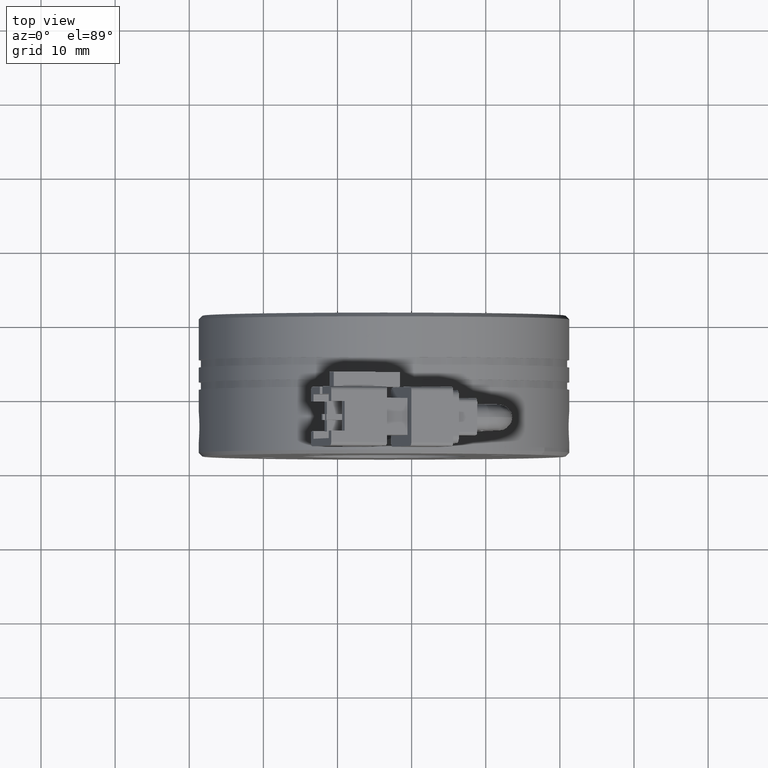
[diagram: clean part render]
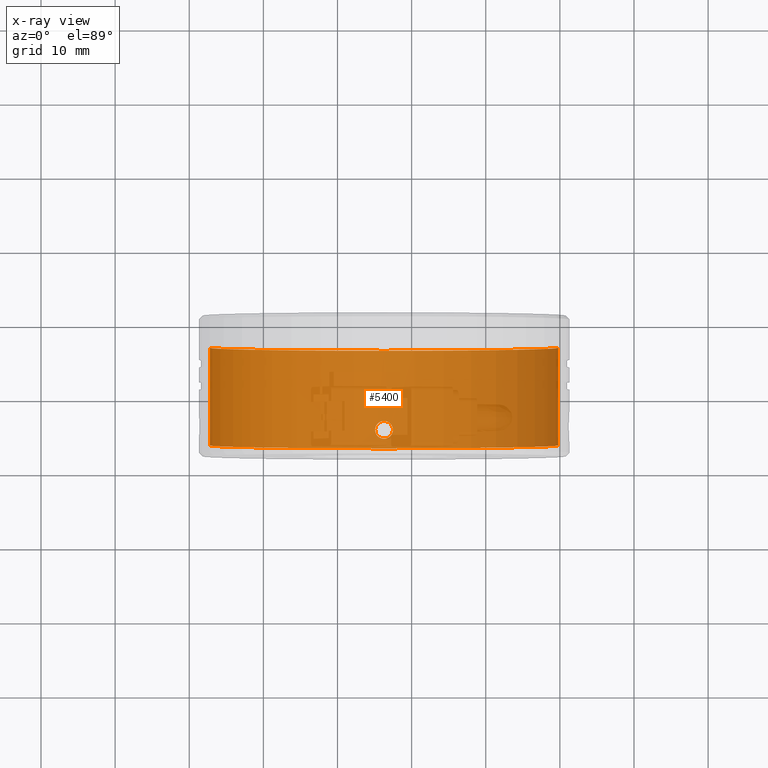
[diagram: x-ray — body ghosted, one internal face saturated and labeled with its STEP entity id]
A machine part, top view, then the same camera in x-ray: the body is ghosted and one INTERNAL B-rep face — a face not visible from any outside direction — is saturated and labeled: STEP entity #5400.
In plain terms, the highlighted cylindrical surface (partial cylindrical patch) has radius 23.5 mm, axis along (-0, 1, -0).
Its self-contained STEP definition (entity closure, byte-faithful):
#54 = CARTESIAN_POINT ( 'NONE',  ( -70.22635228848822900, 4.927531206657398900, -0.1584924912453062300 ) ) ;
#237 = CARTESIAN_POINT ( 'NONE',  ( -70.22635228848822900, 4.927531206657431700, 2.877919977996460600E-015 ) ) ;
#351 = ORIENTED_EDGE ( 'NONE', *, *, #16854, .F. ) ;
#1574 = CYLINDRICAL_SURFACE ( 'NONE', #35791, 23.50000000000000700 ) ;
#2551 = CARTESIAN_POINT ( 'NONE',  ( -117.2263522884882400, 7.327531206657441000, -0.1584924912449848500 ) ) ;
#2922 = CARTESIAN_POINT ( 'NONE',  ( -70.22635228848822900, 4.927531206657431700, 2.877919977996460600E-015 ) ) ;
#3144 = VERTEX_POINT ( 'NONE', #12039 ) ;
#3551 = CARTESIAN_POINT ( 'NONE',  ( -117.2190250022617000, 5.079063876437064800, -0.6045118918368167500 ) ) ;
#3667 = DIRECTION ( 'NONE',  ( -1.000000000000000000, -1.476360405086643800E-016, 0.0000000000000000000 ) ) ;
#3778 = EDGE_CURVE ( 'NONE', #32071, #49871, #41847, .T. ) ;
#3866 = CARTESIAN_POINT ( 'NONE',  ( -70.23367957471472800, 7.175998536877893100, -0.6045118918369504200 ) ) ;
#5110 = CARTESIAN_POINT ( 'NONE',  ( -117.2263522884882400, 3.627531206657425700, 2.906277393448951200E-015 ) ) ;
#5400 = ADVANCED_FACE ( 'NONE', ( #6446, #15622 ), #1574, .F. ) ;
#6304 = CARTESIAN_POINT ( 'NONE',  ( -117.1956939920810300, 6.127531206657418600, -1.199999999999910900 ) ) ;
#6382 = VERTEX_POINT ( 'NONE', #48952 ) ;
#6446 = FACE_BOUND ( 'NONE', #33387, .T. ) ;
#7254 = EDGE_CURVE ( 'NONE', #6382, #20336, #21898, .T. ) ;
#7495 = CARTESIAN_POINT ( 'NONE',  ( -117.2070418420326500, 5.389292777899932200, -0.9588959344436245300 ) ) ;
#7540 = ORIENTED_EDGE ( 'NONE', *, *, #34299, .F. ) ;
#7795 = CARTESIAN_POINT ( 'NONE',  ( -70.24566273494380700, 6.865769635415026600, -0.9588959344438681100 ) ) ;
#8013 = EDGE_CURVE ( 'NONE', #3144, #46477, #38472, .T. ) ;
#9615 = EDGE_LOOP ( 'NONE', ( #25960, #29288, #24993, #27065, #18513, #44893, #16829, #14979, #7540, #351 ) ) ;
#9689 = VERTEX_POINT ( 'NONE', #13739 ) ;
#10111 = EDGE_CURVE ( 'NONE', #15062, #46808, #14790, .T. ) ;
#10303 = DIRECTION ( 'NONE',  ( -1.224646799147351700E-016, 1.000000000000000000, -0.0000000000000000000 ) ) ;
#11436 = CARTESIAN_POINT ( 'NONE',  ( -117.1973777877011900, 5.811552157777597900, -1.168143672619332800 ) ) ;
#11482 = CARTESIAN_POINT ( 'NONE',  ( -70.22635228848822900, 24.01734612509121900, 2.877919977996280300E-015 ) ) ;
#11738 = CARTESIAN_POINT ( 'NONE',  ( -70.25532678927531500, 6.443510255537303200, -1.168143672619650100 ) ) ;
#11931 = DIRECTION ( 'NONE',  ( -1.000000000000000000, -1.476360405086643800E-016, 0.0000000000000000000 ) ) ;
#11933 = EDGE_CURVE ( 'NONE', #9689, #35392, #38612, .T. ) ;
#12039 = CARTESIAN_POINT ( 'NONE',  ( -70.22635228848822900, 7.327531206657418700, 2.877919977996100100E-015 ) ) ;
#12055 = ORIENTED_EDGE ( 'NONE', *, *, #13246, .F. ) ;
#13246 = EDGE_CURVE ( 'NONE', #49871, #32071, #36763, .T. ) ;
#13739 = CARTESIAN_POINT ( 'NONE',  ( -70.22635228848822900, 3.627531206657431900, -2.258754526011502900E-018 ) ) ;
#13786 = DIRECTION ( 'NONE',  ( -1.224646799147351700E-016, 1.000000000000000000, -0.0000000000000000000 ) ) ;
#13856 = CARTESIAN_POINT ( 'NONE',  ( -93.72635228848822900, 24.01734612509121500, 0.0000000000000000000 ) ) ;
#14009 = DIRECTION ( 'NONE',  ( -1.224646799147351700E-016, 1.000000000000000000, -0.0000000000000000000 ) ) ;
#14266 = B_SPLINE_CURVE_WITH_KNOTS ( 'NONE', 3,
 ( #23161, #46697, #27117, #3551, #31087, #7495, #35035, #11436, #39039, #15363 ),
 .UNSPECIFIED., .F., .F.,
 ( 4, 2, 2, 2, 4 ),
 ( 2.102443818765147500E-018, 0.0004687238019175268900, 0.0009374476038350516200, 0.001406171405752577100, 0.001874895207670102200 ),
 .UNSPECIFIED. ) ;
#14790 = LINE ( 'NONE', #42142, #25329 ) ;
#14979 = ORIENTED_EDGE ( 'NONE', *, *, #41221, .F. ) ;
#15062 = VERTEX_POINT ( 'NONE', #38839 ) ;
#15071 = DIRECTION ( 'NONE',  ( -1.224646799147351700E-016, 1.000000000000000000, -0.0000000000000000000 ) ) ;
#15267 = CARTESIAN_POINT ( 'NONE',  ( -92.52635228848824100, 6.127531206657422100, -23.46934170359279600 ) ) ;
#15363 = CARTESIAN_POINT ( 'NONE',  ( -117.1956939920810300, 6.127531206657418600, -1.199999999999910900 ) ) ;
#15622 = FACE_OUTER_BOUND ( 'NONE', #9615, .T. ) ;
#15672 = CARTESIAN_POINT ( 'NONE',  ( -70.25701058489544000, 6.127531206657424800, -1.200000000000239500 ) ) ;
#16829 = ORIENTED_EDGE ( 'NONE', *, *, #10111, .F. ) ;
#16854 = EDGE_CURVE ( 'NONE', #35392, #45990, #36390, .T. ) ;
#17013 = CARTESIAN_POINT ( 'NONE',  ( -70.24568441233255100, 5.389970849347161400, -0.9594175871689084600 ) ) ;
#18162 = CARTESIAN_POINT ( 'NONE',  ( -117.2030289015235800, 6.732042999483815600, -1.048467379871308200 ) ) ;
#18434 = CARTESIAN_POINT ( 'NONE',  ( -70.25701058489544000, 5.969038387537105800, -1.200000000000239800 ) ) ;
#18513 = ORIENTED_EDGE ( 'NONE', *, *, #8013, .T. ) ;
#18635 = VECTOR ( 'NONE', #14009, 1000.000000000000000 ) ;
#20298 = CARTESIAN_POINT ( 'NONE',  ( -94.92635228848823200, 6.127531206657421200, -23.46934170359279600 ) ) ;
#20336 = VERTEX_POINT ( 'NONE', #2922 ) ;
#21328 = CARTESIAN_POINT ( 'NONE',  ( -70.25535928210436500, 5.813520983341323500, -1.168809622639256400 ) ) ;
#21739 = CARTESIAN_POINT ( 'NONE',  ( -70.25701058489544000, 6.127531206657424800, -1.200000000000239500 ) ) ;
#21898 = B_SPLINE_CURVE_WITH_KNOTS ( 'NONE', 3,
 ( #21739, #18434, #21328, #36716, #17013, #24806, #25308, #25482, #54, #237 ),
 .UNSPECIFIED., .F., .F.,
 ( 4, 2, 2, 2, 4 ),
 ( 0.001874895207670434100, 0.002343619967947029700, 0.002812344728223625100, 0.003281069488500220500, 0.003749794248776815900 ),
 .UNSPECIFIED. ) ;
#22129 = CARTESIAN_POINT ( 'NONE',  ( -117.2150144435694700, 7.086427033059473900, -0.7382385666928919000 ) ) ;
#22466 = CARTESIAN_POINT ( 'NONE',  ( -92.52635228848824100, 6.127531206657422100, -23.46934170359279600 ) ) ;
#22635 = CARTESIAN_POINT ( 'NONE',  ( -92.52635228848814100, 5.968963200341976400, -23.46934170359280000 ) ) ;
#22964 = CARTESIAN_POINT ( 'NONE',  ( -92.67825506393188600, 5.522336195100542100, -23.47669348980444000 ) ) ;
#23131 = CARTESIAN_POINT ( 'NONE',  ( -92.55764167313351700, 5.813072478533595000, -23.47099828520095600 ) ) ;
#23161 = CARTESIAN_POINT ( 'NONE',  ( -117.2263522884882300, 4.927531206657425500, 1.487927585237400600E-029 ) ) ;
#23289 = CARTESIAN_POINT ( 'NONE',  ( -92.76635646491273200, 5.390310025290054900, -23.48065131060275200 ) ) ;
#23463 = CARTESIAN_POINT ( 'NONE',  ( -92.99051334207588600, 5.166475486898195700, -23.48874451724348600 ) ) ;
#23633 = CARTESIAN_POINT ( 'NONE',  ( -93.12275977818036700, 5.078535861982799400, -23.49269661661980600 ) ) ;
#23685 = CARTESIAN_POINT ( 'NONE',  ( -93.41334681926930700, 4.958453481316702500, -23.49836474768571300 ) ) ;
#24032 = CARTESIAN_POINT ( 'NONE',  ( -93.57064420649742000, 4.927424354009106700, -23.50000545630416900 ) ) ;
#24220 = CARTESIAN_POINT ( 'NONE',  ( -93.88370300668091800, 4.927638621442001800, -23.49999451499100900 ) ) ;
#24501 = B_SPLINE_CURVE_WITH_KNOTS ( 'NONE', 3,
 ( #6304, #25927, #41804, #18162, #45677, #22129, #49602, #26101, #2551, #30041 ),
 .UNSPECIFIED., .F., .F.,
 ( 4, 2, 2, 2, 4 ),
 ( 0.001874895207670102200, 0.002343619967946616000, 0.002812344728223129800, 0.003281069488499643700, 0.003749794248776157500 ),
 .UNSPECIFIED. ) ;
#24806 = CARTESIAN_POINT ( 'NONE',  ( -70.23769013340701400, 5.168635380255253200, -0.7382385666930709700 ) ) ;
#24846 = AXIS2_PLACEMENT_3D ( 'NONE', #50729, #27240, #3667 ) ;
#24993 = ORIENTED_EDGE ( 'NONE', *, *, #7254, .F. ) ;
#25308 = CARTESIAN_POINT ( 'NONE',  ( -70.23368564043339300, 5.079214519232675900, -0.6045118168779820600 ) ) ;
#25329 = VECTOR ( 'NONE', #10303, 1000.000000000000000 ) ;
#25424 = CARTESIAN_POINT ( 'NONE',  ( -94.04161272719740300, 4.959183482535530100, -23.49832889752806900 ) ) ;
#25482 = CARTESIAN_POINT ( 'NONE',  ( -70.22803366770975200, 4.959387532219611900, -0.3159790653652507800 ) ) ;
#25758 = CARTESIAN_POINT ( 'NONE',  ( -70.22635228848822900, 24.01734612509121900, 2.877919977996280300E-015 ) ) ;
#25911 = EDGE_CURVE ( 'NONE', #46808, #46477, #44389, .T. ) ;
#25925 = CARTESIAN_POINT ( 'NONE',  ( -94.33034890149778600, 5.078906564495665200, -23.49268052419925100 ) ) ;
#25927 = CARTESIAN_POINT ( 'NONE',  ( -117.1956939920810200, 6.286024025777710900, -1.199999999999910500 ) ) ;
#25960 = ORIENTED_EDGE ( 'NONE', *, *, #11933, .F. ) ;
#26097 = CARTESIAN_POINT ( 'NONE',  ( -94.46418425551843300, 5.168310903423362700, -23.48867536120525700 ) ) ;
#26101 = CARTESIAN_POINT ( 'NONE',  ( -117.2246709092666900, 7.295674881095159500, -0.3159790653651863800 ) ) ;
#26266 = CARTESIAN_POINT ( 'NONE',  ( -94.68554589669294300, 5.389664535986304900, -23.48067745738272900 ) ) ;
#26606 = CARTESIAN_POINT ( 'NONE',  ( -94.77467945293975000, 5.522757737338537300, -23.47668301450492500 ) ) ;
#26768 = CARTESIAN_POINT ( 'NONE',  ( -94.89513057265425300, 5.813368644627938200, -23.47099470686603300 ) ) ;
#26943 = CARTESIAN_POINT ( 'NONE',  ( -70.22635228848822900, 16.78530919654422600, 0.0000000000000000000 ) ) ;
#27065 = ORIENTED_EDGE ( 'NONE', *, *, #27742, .F. ) ;
#27087 = CARTESIAN_POINT ( 'NONE',  ( -94.92635228848820400, 5.968963090555246400, -23.46934170359279300 ) ) ;
#27117 = CARTESIAN_POINT ( 'NONE',  ( -117.2247033675538600, 4.958721580975749900, -0.3140102368163331100 ) ) ;
#27240 = DIRECTION ( 'NONE',  ( 1.224646799147351700E-016, -1.000000000000000000, 0.0000000000000000000 ) ) ;
#27256 = CARTESIAN_POINT ( 'NONE',  ( -94.92635228848823200, 6.127531206657421200, -23.46934170359279600 ) ) ;
#27409 = CARTESIAN_POINT ( 'NONE',  ( -70.22800120942261500, 7.296340832339169900, -0.3140102368163921200 ) ) ;
#27742 = EDGE_CURVE ( 'NONE', #3144, #6382, #28114, .T. ) ;
#28114 = B_SPLINE_CURVE_WITH_KNOTS ( 'NONE', 3,
 ( #47005, #50900, #27409, #3866, #31393, #7795, #35348, #11738, #39322, #15672 ),
 .UNSPECIFIED., .F., .F.,
 ( 4, 2, 2, 2, 4 ),
 ( 2.806702024536074400E-021, 0.0004687238019176085300, 0.0009374476038352170700, 0.001406171405752825500, 0.001874895207670434100 ),
 .UNSPECIFIED. ) ;
#28441 = ORIENTED_EDGE ( 'NONE', *, *, #3778, .F. ) ;
#29288 = ORIENTED_EDGE ( 'NONE', *, *, #46323, .T. ) ;
#29724 = CARTESIAN_POINT ( 'NONE',  ( -94.92635228848823200, 6.127531206657421200, -23.46934170359279600 ) ) ;
#30041 = CARTESIAN_POINT ( 'NONE',  ( -117.2263522884882300, 7.327531206657412500, -1.972152263052529500E-028 ) ) ;
#30194 = AXIS2_PLACEMENT_3D ( 'NONE', #32162, #44035, #40929 ) ;
#31087 = CARTESIAN_POINT ( 'NONE',  ( -117.2150361141603300, 5.168113711426256500, -0.7375604793040598800 ) ) ;
#31393 = CARTESIAN_POINT ( 'NONE',  ( -70.23766846281611700, 7.086948701888709400, -0.7375604793042350700 ) ) ;
#31955 = DIRECTION ( 'NONE',  ( -1.224646799147351700E-016, 1.000000000000000000, -0.0000000000000000000 ) ) ;
#32060 = CARTESIAN_POINT ( 'NONE',  ( -117.2263522884882400, 24.01734612509121200, 0.0000000000000000000 ) ) ;
#32071 = VERTEX_POINT ( 'NONE', #15267 ) ;
#32162 = CARTESIAN_POINT ( 'NONE',  ( -93.72635228848822900, 3.627531206657428800, 0.0000000000000000000 ) ) ;
#33387 = EDGE_LOOP ( 'NONE', ( #12055, #28441 ) ) ;
#34086 = LINE ( 'NONE', #25758, #18635 ) ;
#34299 = EDGE_CURVE ( 'NONE', #45990, #47823, #14266, .T. ) ;
#35035 = CARTESIAN_POINT ( 'NONE',  ( -117.2030349682191600, 5.523019486833152100, -1.048316736395401100 ) ) ;
#35348 = CARTESIAN_POINT ( 'NONE',  ( -70.24966960875733000, 6.732042926481792500, -1.048316736395676000 ) ) ;
#35392 = VERTEX_POINT ( 'NONE', #5110 ) ;
#35791 = AXIS2_PLACEMENT_3D ( 'NONE', #13856, #13786, #11931 ) ;
#36390 = LINE ( 'NONE', #32060, #46767 ) ;
#36716 = CARTESIAN_POINT ( 'NONE',  ( -70.24967567545289200, 5.523019413830928300, -1.048467379871584400 ) ) ;
#36763 = B_SPLINE_CURVE_WITH_KNOTS ( 'NONE', 3,
 ( #27256, #27087, #26768, #26606, #26266, #26097, #25925, #25424, #24220, #24032, #23685, #23633, #23463, #23289, #22964, #23131, #22635, #22466 ),
 .UNSPECIFIED., .F., .F.,
 ( 4, 2, 2, 2, 2, 2, 2, 2, 4 ),
 ( 0.0000000000000000000, 0.0004689464760253244400, 0.0009378929520506488900, 0.001406839428075973300, 0.001875785904101297800, 0.002344732380126622400, 0.002813678856151946700, 0.003282625332177270900, 0.003751571808202595500 ),
 .UNSPECIFIED. ) ;
#37142 = CARTESIAN_POINT ( 'NONE',  ( -117.2263522884882400, 16.78530919654421900, 2.877919977996280700E-015 ) ) ;
#37237 = VECTOR ( 'NONE', #15071, 1000.000000000000000 ) ;
#38472 = LINE ( 'NONE', #11482, #37237 ) ;
#38612 = CIRCLE ( 'NONE', #30194, 23.50000000000000700 ) ;
#38839 = CARTESIAN_POINT ( 'NONE',  ( -117.2263522884882300, 7.327531206657412500, -1.972152263052529500E-028 ) ) ;
#39039 = CARTESIAN_POINT ( 'NONE',  ( -117.1956939920810300, 5.969038711593016800, -1.199999999999911100 ) ) ;
#39322 = CARTESIAN_POINT ( 'NONE',  ( -70.25701058489545400, 6.286023701721856800, -1.200000000000239500 ) ) ;
#40101 = CARTESIAN_POINT ( 'NONE',  ( -117.1956939920810300, 6.127531206657418600, -1.199999999999910900 ) ) ;
#40929 = DIRECTION ( 'NONE',  ( -1.000000000000000000, -1.291815354450813400E-016, 0.0000000000000000000 ) ) ;
#41221 = EDGE_CURVE ( 'NONE', #47823, #15062, #24501, .T. ) ;
#41804 = CARTESIAN_POINT ( 'NONE',  ( -117.1973452948721500, 6.441541429973464800, -1.168809622638938800 ) ) ;
#41847 = B_SPLINE_CURVE_WITH_KNOTS ( 'NONE', 3,
 ( #43482, #44270, #44333, #44508, #44768, #44926, #45094, #45154, #45313, #45411, #45469, #45568, #45633, #45747, #45856, #45961, #46025, #20298 ),
 .UNSPECIFIED., .F., .F.,
 ( 4, 2, 2, 2, 2, 2, 2, 2, 4 ),
 ( 0.003751571808202595500, 0.004220518608907716300, 0.004689465409612837000, 0.005158412210317958600, 0.005627359011023078500, 0.006096305811728200100, 0.006565252612433320800, 0.007034199413138441500, 0.007503146213843562200 ),
 .UNSPECIFIED. ) ;
#42142 = CARTESIAN_POINT ( 'NONE',  ( -117.2263522884882400, 24.01734612509121200, 0.0000000000000000000 ) ) ;
#43482 = CARTESIAN_POINT ( 'NONE',  ( -92.52635228848824100, 6.127531206657422100, -23.46934170359279600 ) ) ;
#44035 = DIRECTION ( 'NONE',  ( -1.224646799147351700E-016, 1.000000000000000000, -0.0000000000000000000 ) ) ;
#44270 = CARTESIAN_POINT ( 'NONE',  ( -92.52635228848834000, 6.286099322760179600, -23.46934170359280000 ) ) ;
#44333 = CARTESIAN_POINT ( 'NONE',  ( -92.55757400432222000, 6.441693768686905100, -23.47099470686603300 ) ) ;
#44389 = CIRCLE ( 'NONE', #24846, 23.50000000000000700 ) ;
#44508 = CARTESIAN_POINT ( 'NONE',  ( -92.67802512403667900, 6.732304675976314100, -23.47668301450492500 ) ) ;
#44768 = CARTESIAN_POINT ( 'NONE',  ( -92.76715868028351500, 6.865397877328550900, -23.48067745738272900 ) ) ;
#44893 = ORIENTED_EDGE ( 'NONE', *, *, #25911, .F. ) ;
#44926 = CARTESIAN_POINT ( 'NONE',  ( -92.98852032145808300, 7.086751509891494800, -23.48867536120525700 ) ) ;
#45094 = CARTESIAN_POINT ( 'NONE',  ( -93.12235567547868700, 7.176155848819189700, -23.49268052419925100 ) ) ;
#45154 = CARTESIAN_POINT ( 'NONE',  ( -93.41109184977908300, 7.295878930779317700, -23.49832889752806900 ) ) ;
#45313 = CARTESIAN_POINT ( 'NONE',  ( -93.56900157029559800, 7.327423791872844200, -23.49999451499100900 ) ) ;
#45411 = CARTESIAN_POINT ( 'NONE',  ( -93.88206037047903900, 7.327638059305735800, -23.50000545630417600 ) ) ;
#45469 = CARTESIAN_POINT ( 'NONE',  ( -94.03935775770718000, 7.296608931998145300, -23.49836474768571300 ) ) ;
#45568 = CARTESIAN_POINT ( 'NONE',  ( -94.32994479879609200, 7.176526551332052000, -23.49269661661981300 ) ) ;
#45633 = CARTESIAN_POINT ( 'NONE',  ( -94.46219123490060100, 7.088586926416633500, -23.48874451724348200 ) ) ;
#45677 = CARTESIAN_POINT ( 'NONE',  ( -117.2070201646439400, 6.865091563967570900, -0.9594175871686626600 ) ) ;
#45747 = CARTESIAN_POINT ( 'NONE',  ( -94.68634811206376900, 6.864752388024787600, -23.48065131060275600 ) ) ;
#45856 = CARTESIAN_POINT ( 'NONE',  ( -94.77444951304458700, 6.732726218214312800, -23.47669348980444000 ) ) ;
#45961 = CARTESIAN_POINT ( 'NONE',  ( -94.89506290384297000, 6.441989934781243000, -23.47099828520095200 ) ) ;
#45990 = VERTEX_POINT ( 'NONE', #50965 ) ;
#46025 = CARTESIAN_POINT ( 'NONE',  ( -94.92635228848824600, 6.286099432545824200, -23.46934170359280000 ) ) ;
#46323 = EDGE_CURVE ( 'NONE', #9689, #20336, #34086, .T. ) ;
#46477 = VERTEX_POINT ( 'NONE', #26943 ) ;
#46697 = CARTESIAN_POINT ( 'NONE',  ( -117.2263522884882600, 4.927531206657435300, -0.1584928137568281900 ) ) ;
#46767 = VECTOR ( 'NONE', #31955, 1000.000000000000000 ) ;
#46808 = VERTEX_POINT ( 'NONE', #37142 ) ;
#47005 = CARTESIAN_POINT ( 'NONE',  ( -70.22635228848822900, 7.327531206657418700, 2.877919977996100100E-015 ) ) ;
#47823 = VERTEX_POINT ( 'NONE', #40101 ) ;
#48952 = CARTESIAN_POINT ( 'NONE',  ( -70.25701058489544000, 6.127531206657424800, -1.200000000000239500 ) ) ;
#49602 = CARTESIAN_POINT ( 'NONE',  ( -117.2190189365430800, 7.175847894082054700, -0.6045118168778429400 ) ) ;
#49871 = VERTEX_POINT ( 'NONE', #29724 ) ;
#50729 = CARTESIAN_POINT ( 'NONE',  ( -93.72635228848822900, 16.78530919654422200, 0.0000000000000000000 ) ) ;
#50900 = CARTESIAN_POINT ( 'NONE',  ( -70.22635228848824300, 7.327531206657450700, -0.1584928137568513100 ) ) ;
#50965 = CARTESIAN_POINT ( 'NONE',  ( -117.2263522884882300, 4.927531206657425500, 1.487927585237400600E-029 ) ) ;